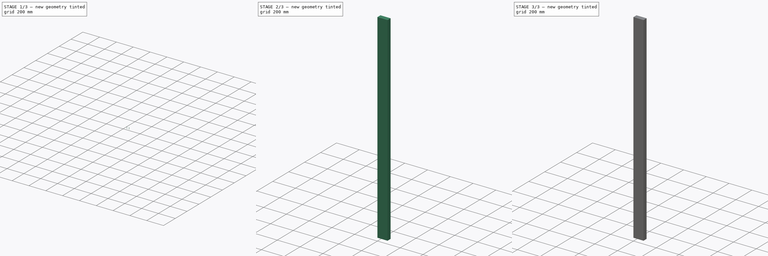
[diagram: build sequence overview — one tinted view per stage of 3, left to right]
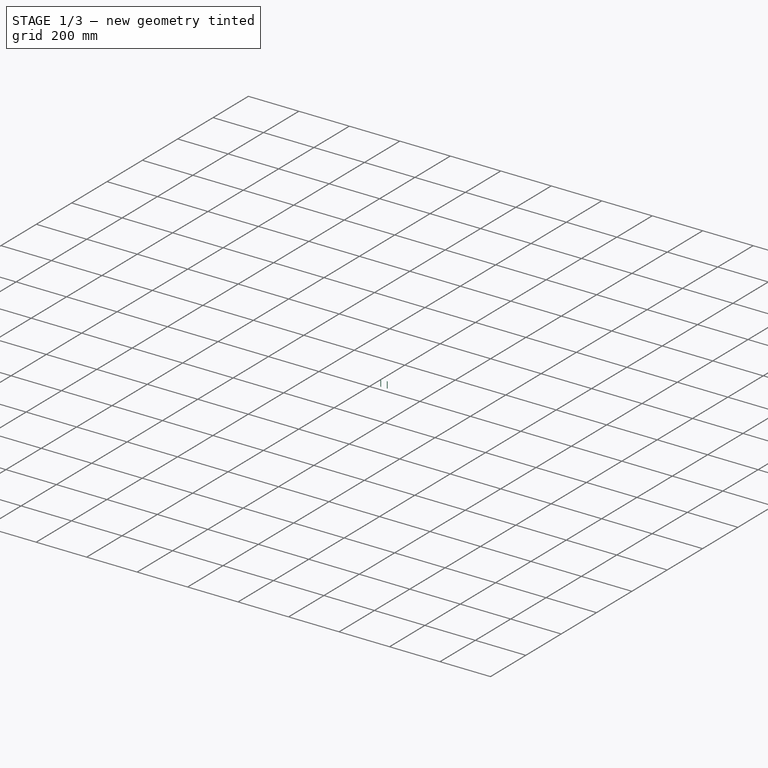
[diagram: stage 1 of 3 — iso view after this stage's code; geometry added in this stage tinted green]
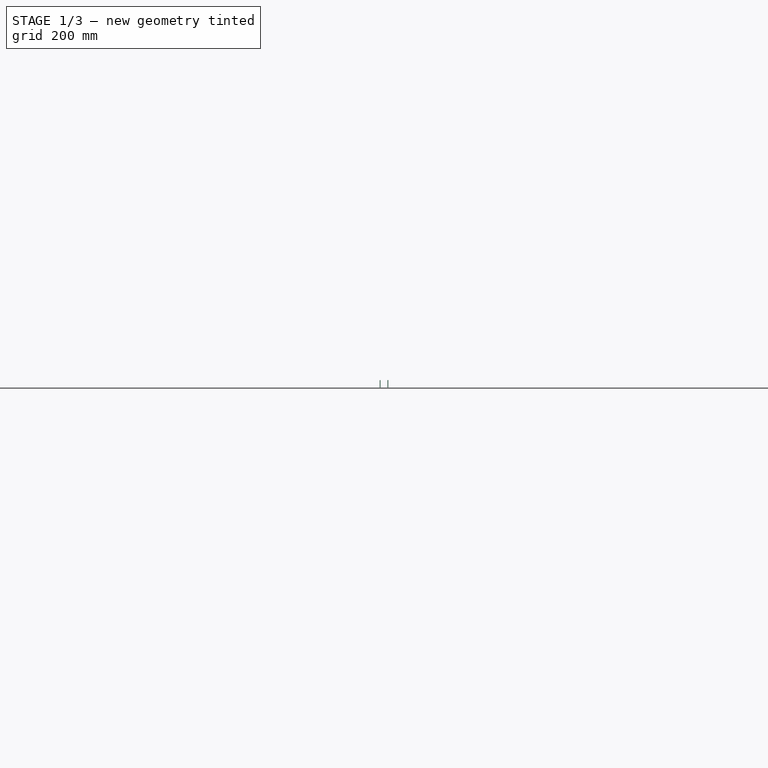
[diagram: stage 1 of 3 — front view after this stage's code; geometry added in this stage tinted green]
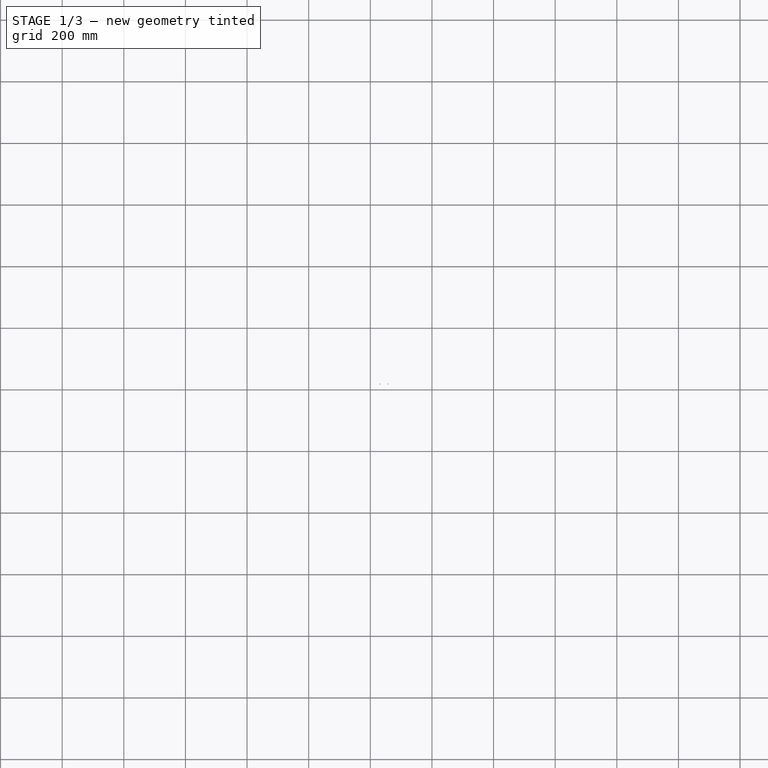
[diagram: stage 1 of 3 — top view after this stage's code; geometry added in this stage tinted green]
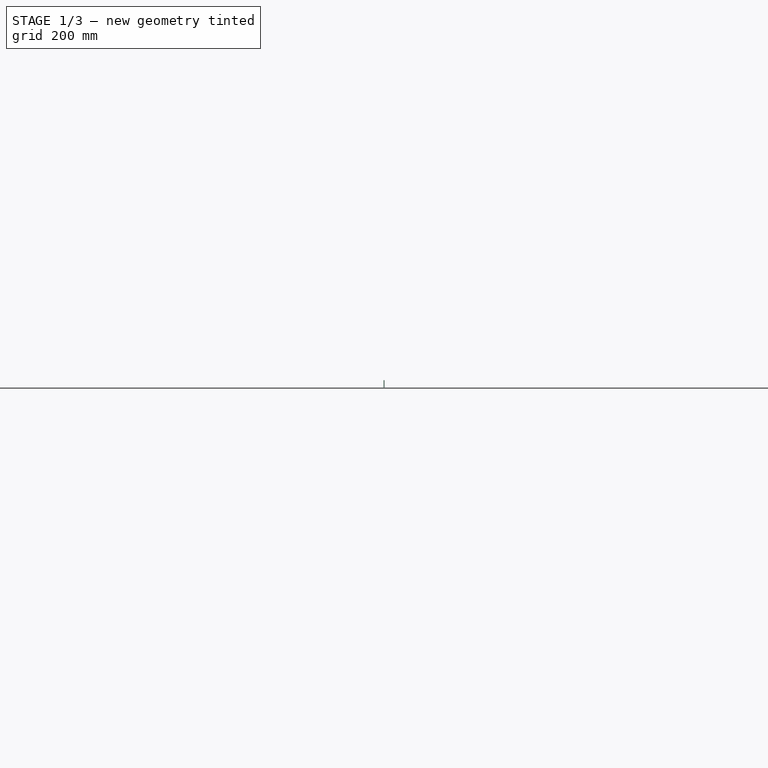
[diagram: stage 1 of 3 — right view after this stage's code; geometry added in this stage tinted green]
FCSTD DOCUMENT  (FreeCAD 0.15R4671 (Git))
Label: wb_bottom_rack_front_rail
License: All rights reserved
LicenseURL: http://en.wikipedia.org/wiki/All_rights_reserved
objects: Sketcher::SketchObject×4, Part::Extrusion×4, Part::Cut×3
note: 11 computed .brp shape members not serialized (recipe doc carries the construction recipe); baked Part::Feature solids carry a one-line shape summary decoded from their .brp

FEATURE [Sketcher::SketchObject] Sketch
  sketch-geometry (4):
    g0: LineSegment StartX=0 StartY=0 StartZ=0 EndX=88.9 EndY=0 EndZ=0
    g1: LineSegment StartX=88.9 StartY=0 StartZ=0 EndX=88.9 EndY=38.1 EndZ=0
    g2: LineSegment StartX=88.9 StartY=38.1 StartZ=0 EndX=0 EndY=38.1 EndZ=0
    g3: LineSegment StartX=0 StartY=38.1 StartZ=0 EndX=0 EndY=0 EndZ=0
  constraints (11):
    c: Coincident(g0,g1)
    c: Coincident(g1,g2)
    c: Coincident(g2,g3)
    c: Coincident(g3,g0)
    c: Horizontal(g0)
    c: Horizontal(g2)
    c: Vertical(g1)
    c: Vertical(g3)
    c: Coincident(g0,g-1)
    c: Distance(g3) = 38.1
    c: Distance(g0) = 88.9
FEATURE [Part::Extrusion] Extrude
  Base = -> Sketch
  Dir = (0,0,1752.6)
  Solid = true
FEATURE [Sketcher::SketchObject] Sketch001
  ExternalGeometry = -> [Extrude]
  Placement = pos=(0,0,1752.6) rot=(0,0,1;0rad)
  Support = -> Extrude [Face6]
  sketch-geometry (2):
    g0: Circle CenterX=31.75 CenterY=19.05 CenterZ=0 NormalX=0 NormalY=0 NormalZ=1 Radius=1.27
    g1: Circle CenterX=57.15 CenterY=19.05 CenterZ=0 NormalX=0 NormalY=0 NormalZ=1 Radius=1.27
  constraints (6):
    c: Radius(g0) = 1.27
    c: Distance(g0,g-4) = 19.05
    c: Distance(g0,g1) = 25.4
    c: Distance(g1,g-3) = 31.75
    c: Distance(g1,g-4) = 19.05
    c: Radius(g1) = 1.27
FEATURE [Part::Extrusion] Extrude001
  Base = -> Sketch001
  Dir = (0,0,-25.4)
  Solid = true
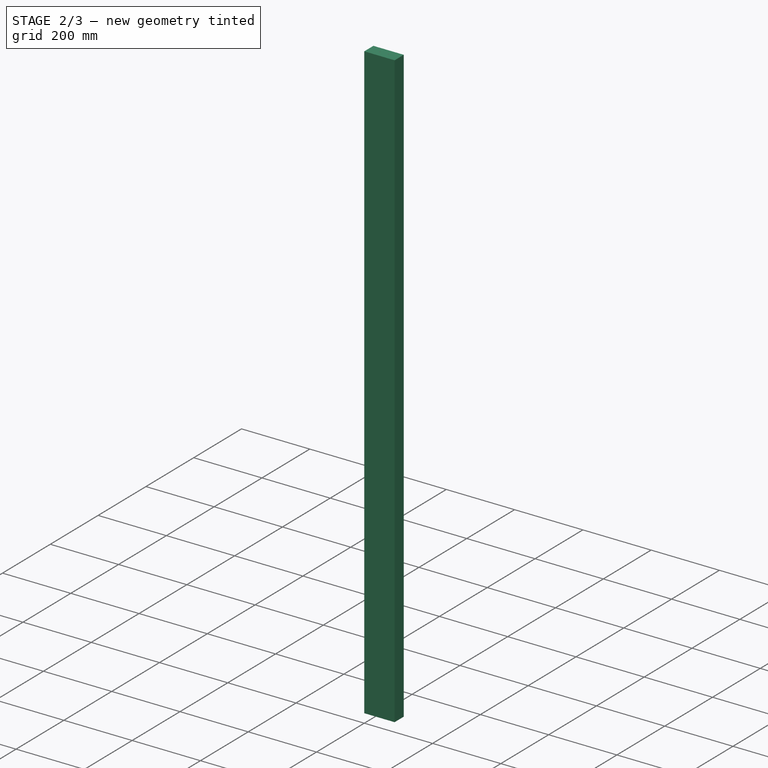
[diagram: stage 2 of 3 — iso view after this stage's code; geometry added in this stage tinted green]
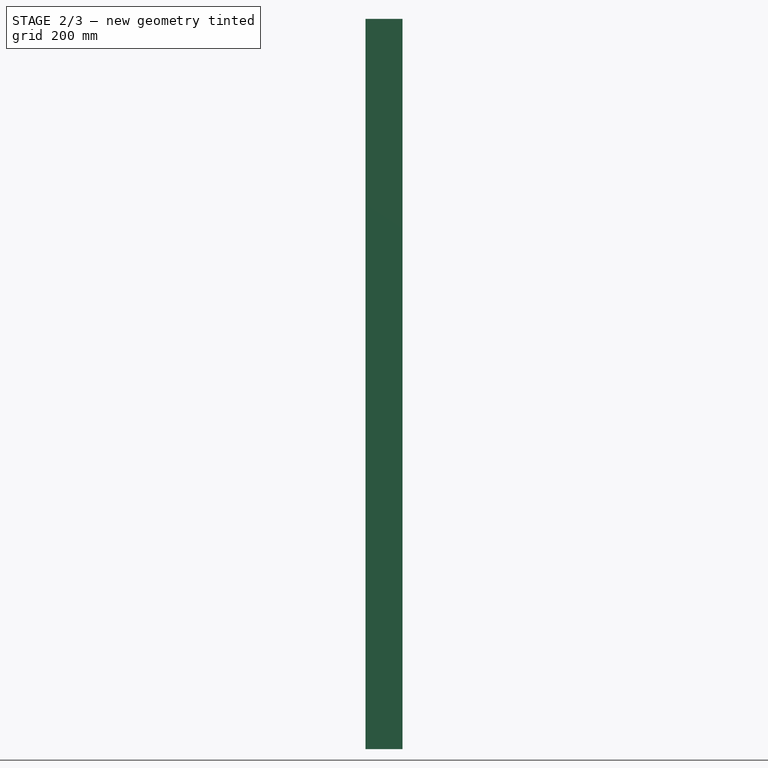
[diagram: stage 2 of 3 — front view after this stage's code; geometry added in this stage tinted green]
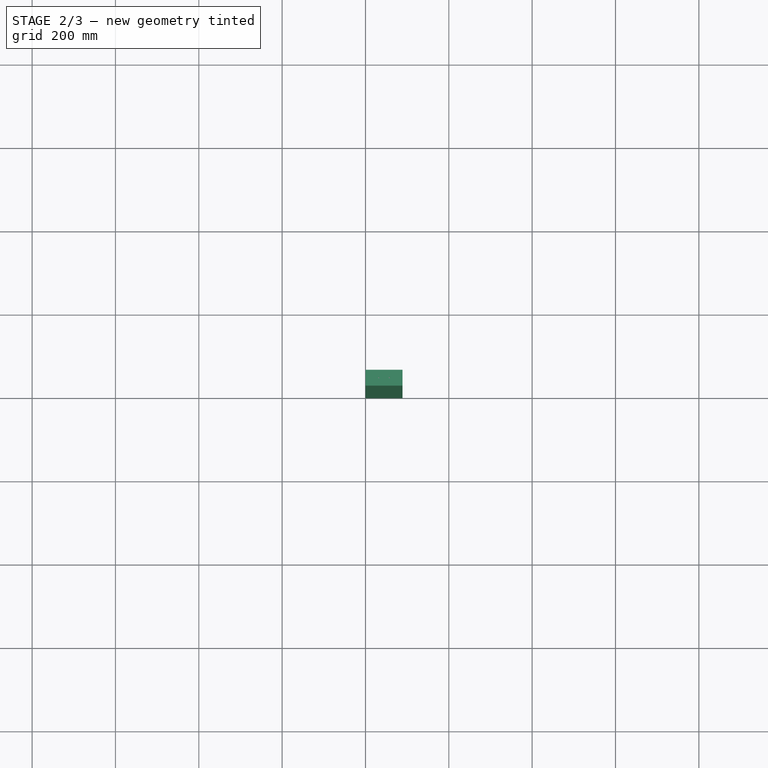
[diagram: stage 2 of 3 — top view after this stage's code; geometry added in this stage tinted green]
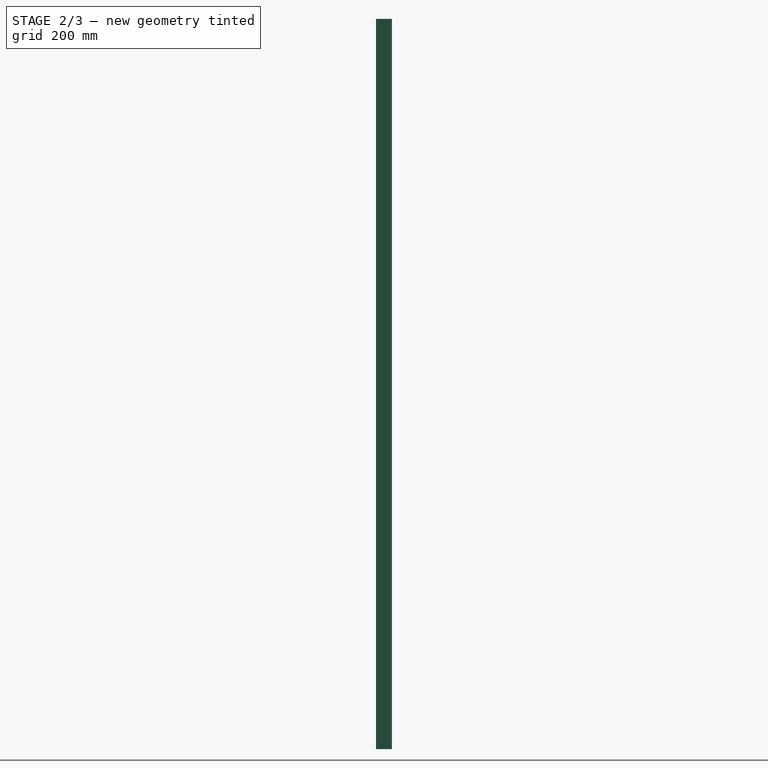
[diagram: stage 2 of 3 — right view after this stage's code; geometry added in this stage tinted green]
FEATURE [Part::Cut] Cut
  Base = -> Extrude
  Tool = -> Extrude001
FEATURE [Sketcher::SketchObject] Sketch002
  ExternalGeometry = -> [Cut]
  Placement = pos=(0,0,0) rot=(1,0,0;3.14159rad)
  Support = -> Cut [Face4]
  sketch-geometry (2):
    g0: Circle CenterX=31.75 CenterY=-19.05 CenterZ=0 NormalX=0 NormalY=0 NormalZ=1 Radius=1.27
    g1: Circle CenterX=57.15 CenterY=-19.05 CenterZ=0 NormalX=0 NormalY=0 NormalZ=1 Radius=1.27
  constraints (6):
    c: Radius(g0) = 1.27
    c: Radius(g1) = 1.27
    c: Distance(g0,g-4) = 19.05
    c: Distance(g1,g-4) = 19.05
    c: Distance(g0,g1) = 25.4
    c: Distance(g0,g-3) = 31.75
FEATURE [Part::Extrusion] Extrude002
  Base = -> Sketch002
  Dir = (0,0,25.4)
  Solid = true
FEATURE [Part::Cut] Cut001
  Base = -> Cut
  Tool = -> Extrude002
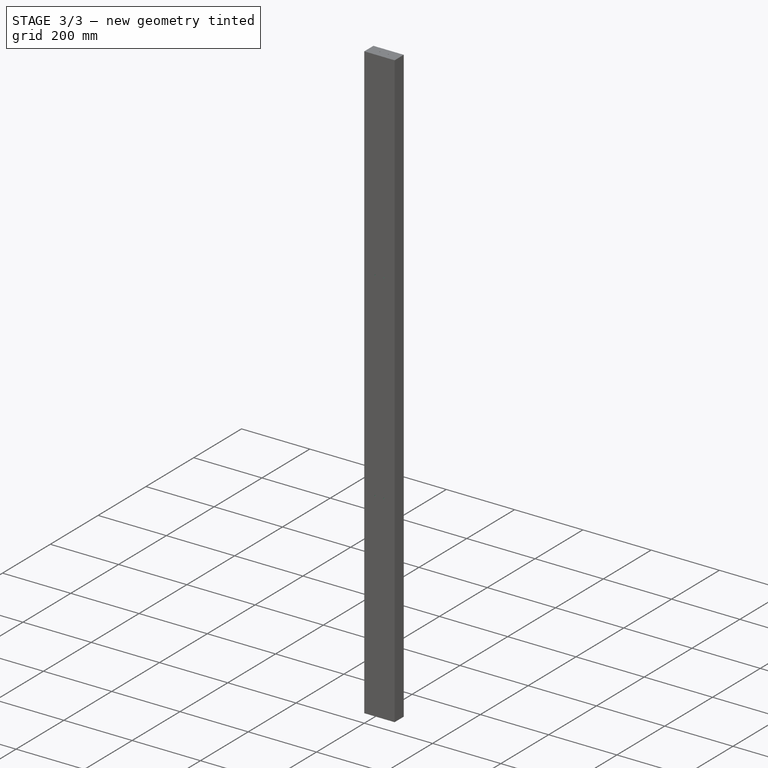
[diagram: stage 3 of 3 — iso view after this stage's code; geometry added in this stage tinted green]
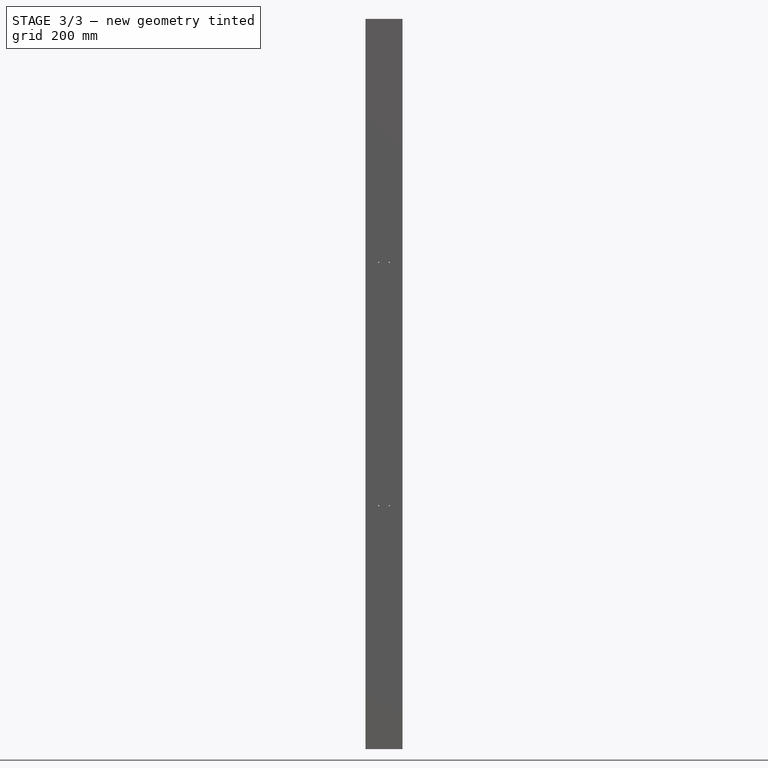
[diagram: stage 3 of 3 — front view after this stage's code; geometry added in this stage tinted green]
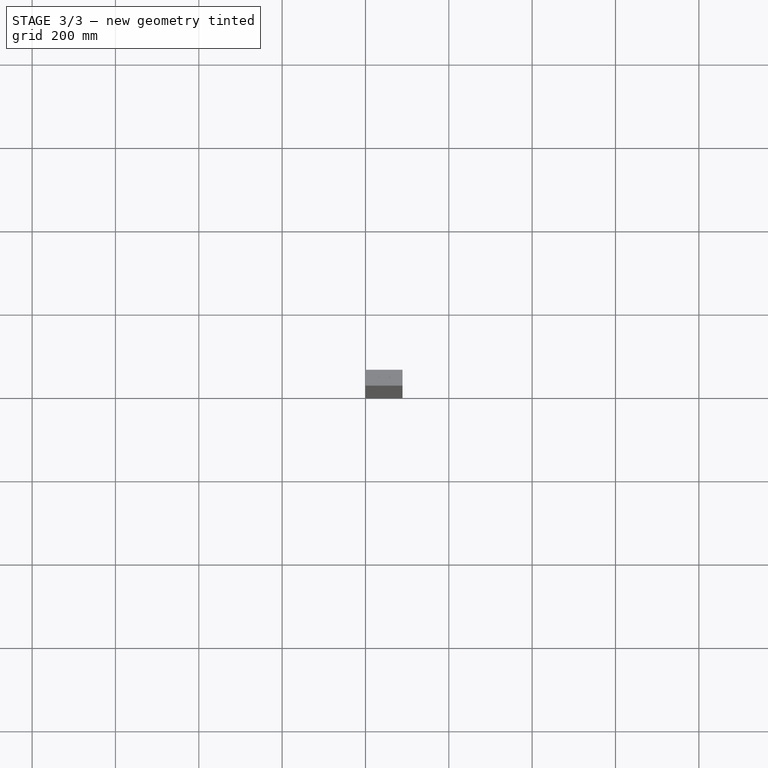
[diagram: stage 3 of 3 — top view after this stage's code; geometry added in this stage tinted green]
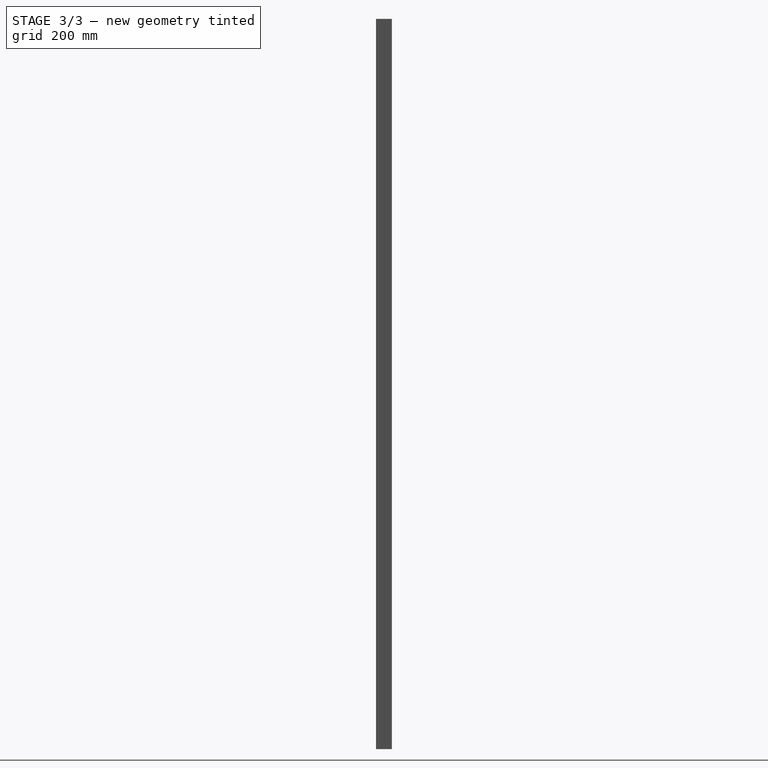
[diagram: stage 3 of 3 — right view after this stage's code; geometry added in this stage tinted green]
FEATURE [Sketcher::SketchObject] Sketch003
  ExternalGeometry = -> [Cut001]
  Placement = pos=(0,38.1,0) rot=(0,0.707107,0.707107;3.14159rad)
  Support = -> Cut001 [Face6]
  sketch-geometry (4):
    g0: Circle CenterX=-57.15 CenterY=584.2 CenterZ=0 NormalX=0 NormalY=0 NormalZ=1 Radius=1.27
    g1: Circle CenterX=-31.75 CenterY=584.2 CenterZ=0 NormalX=0 NormalY=0 NormalZ=1 Radius=1.27
    g2: Circle CenterX=-57.15 CenterY=1168.4 CenterZ=0 NormalX=0 NormalY=0 NormalZ=1 Radius=1.27
    g3: Circle CenterX=-31.75 CenterY=1168.4 CenterZ=0 NormalX=0 NormalY=0 NormalZ=1 Radius=1.27
  constraints (12):
    c: Distance(g2,g-3) = 584.2
    c: Distance(g3,g-3) = 584.2
    c: Distance(g3,g-5) = 31.75
    c: Distance(g2,g3) = 25.4
    c: Radius(g2) = 1.27
    c: Radius(g3) = 1.27
    c: Distance(g0,g-4) = 584.2
    c: Distance(g1,g-4) = 584.2
    c: Distance(g1,g-5) = 31.75
    c: Distance(g0,g1) = 25.4
    c: Radius(g1) = 1.27
    c: Radius(g0) = 1.27
FEATURE [Part::Extrusion] Extrude003
  Base = -> Sketch003
  Dir = (0,-38.1,0)
  Solid = true
FEATURE [Part::Cut] Cut002
  Base = -> Cut001
  Tool = -> Extrude003
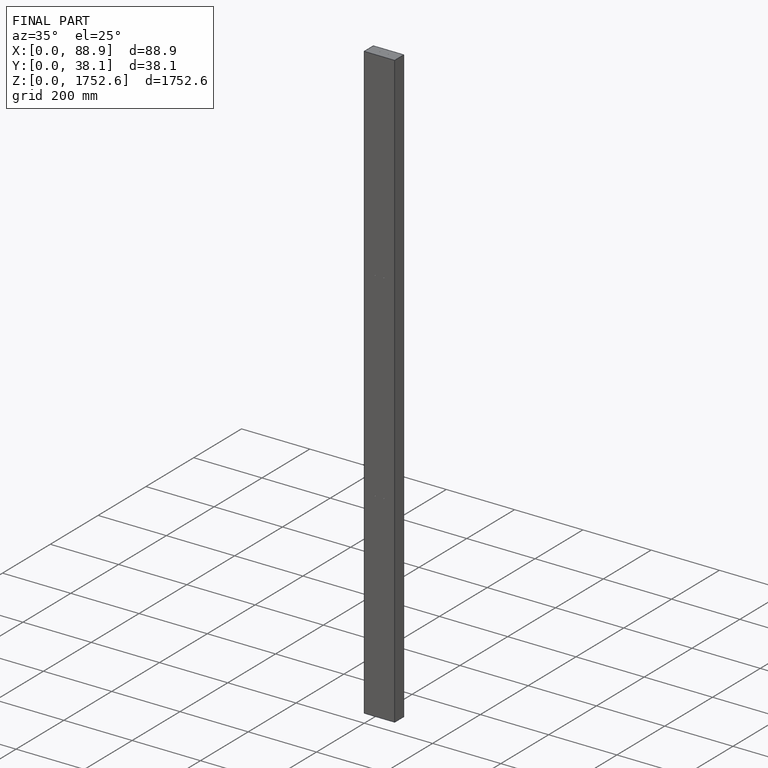
[diagram: finished part — iso view with bounding-box wireframe]
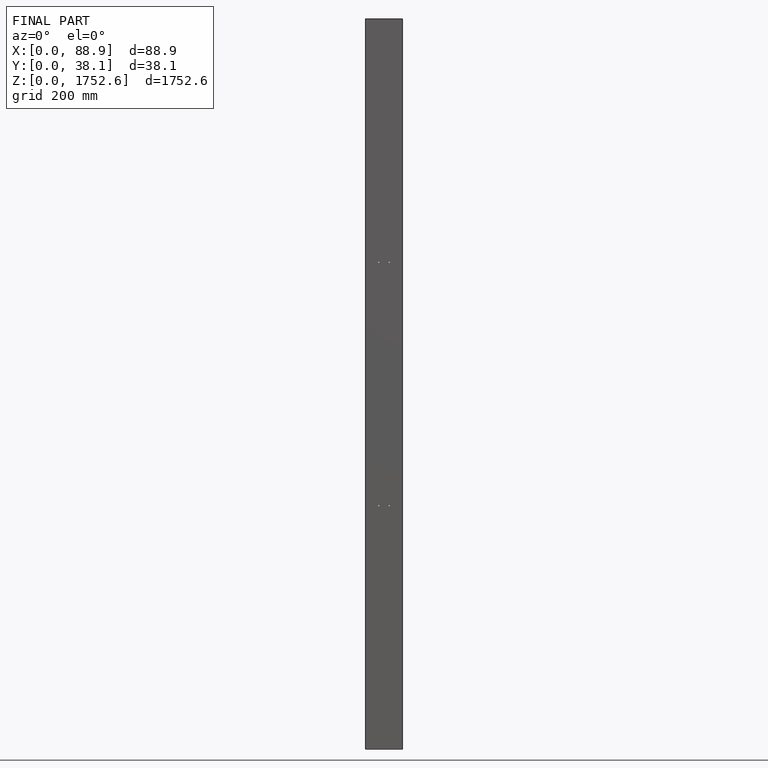
[diagram: finished part — front view with bounding-box wireframe]
